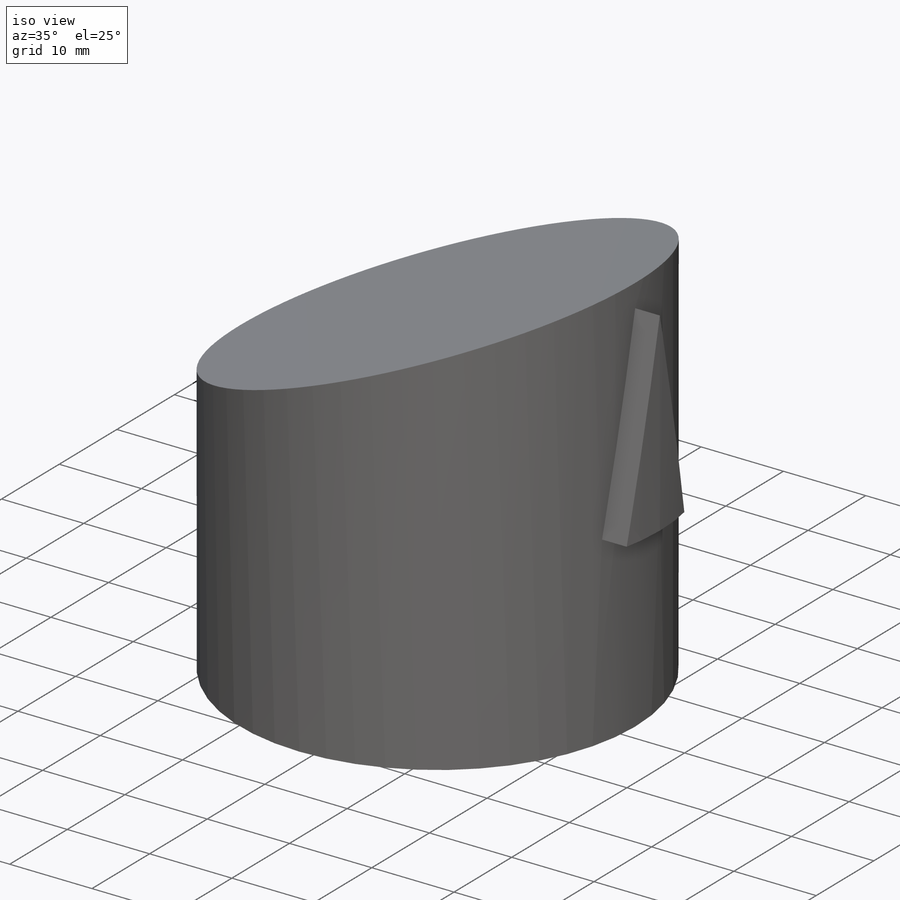
[diagram: iso view]
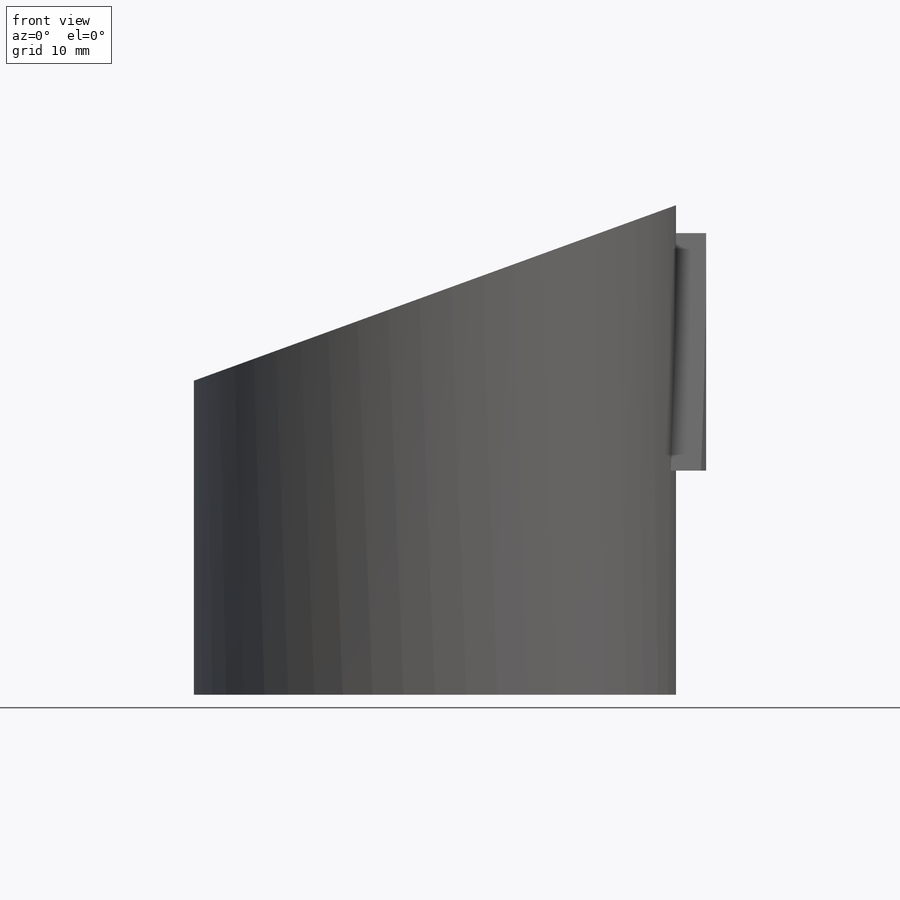
[diagram: front view]
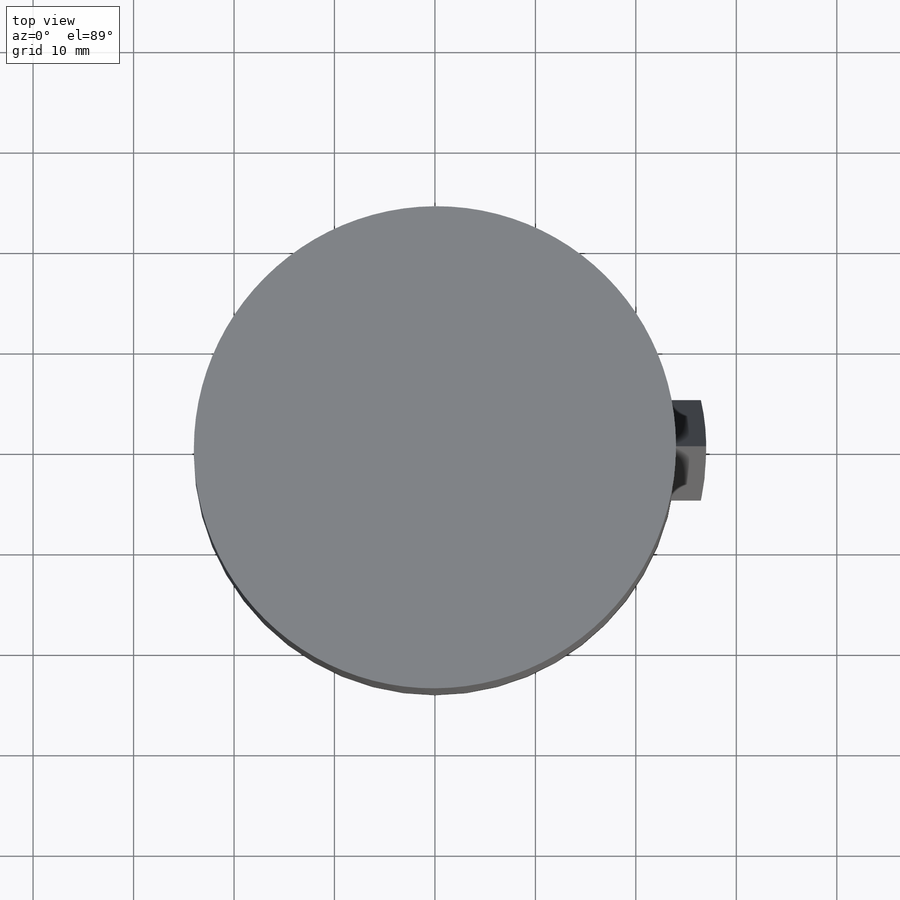
[diagram: top view]
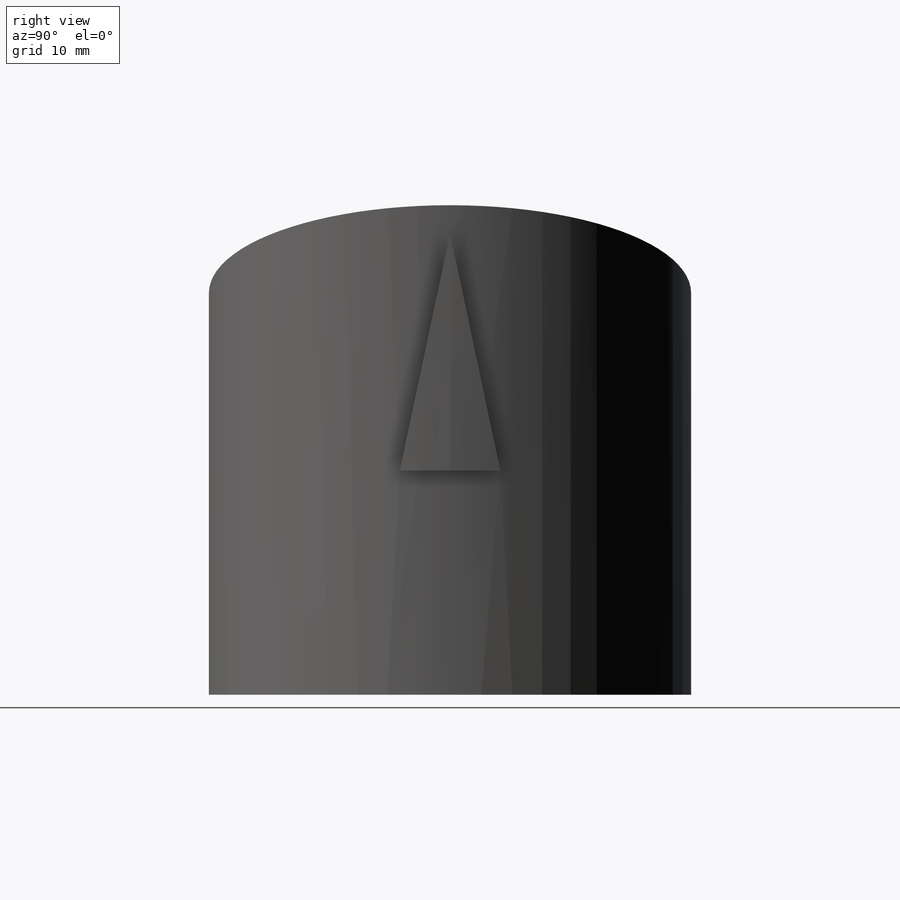
[diagram: right view]
SOLIDWORKS PART (.sldprt)
format: sldprt  version: not decoded by parser v0  size: 184,320 bytes
history: native  units: mm
features: sketch x3, extrude x3, plane x2, material x1 (+13 scaffold rows collapsed)
feature tree (22):
  scaffold x13  (default folders/planes/origin — collapsed)
  material  "Material <not specified>"
  sketch  "Sketch1"  dims[c1.D1=~25.391395mm c1.D5=25.4mm c2.D1=5.0mm c2.D2=3.0mm c2.D3=1.5mm c2.D4=2.5mm]
  extrude  "Boss-Extrude1"  Depth=6mm
  plane  "Plane3"  Offset=40mm
  plane  "Plane2"
  sketch  "Sketch2"  dims[D1=25.4mm]
  extrude  "Boss-Extrude4"  [1 undecoded]
  sketch  "Sketch5"  dims[D1=10.0mm D2=5.0mm D3=0.0mm]
  extrude  "Boss-Extrude5"  Depth=3mm
decode coverage: 5 of 6 modeling features carry decoded parameters
note: ~ marks probable driven/reference dimensions
note: 1 parameter value undecoded
note: suppression state not decoded; provenance and decode notes live in map.json
